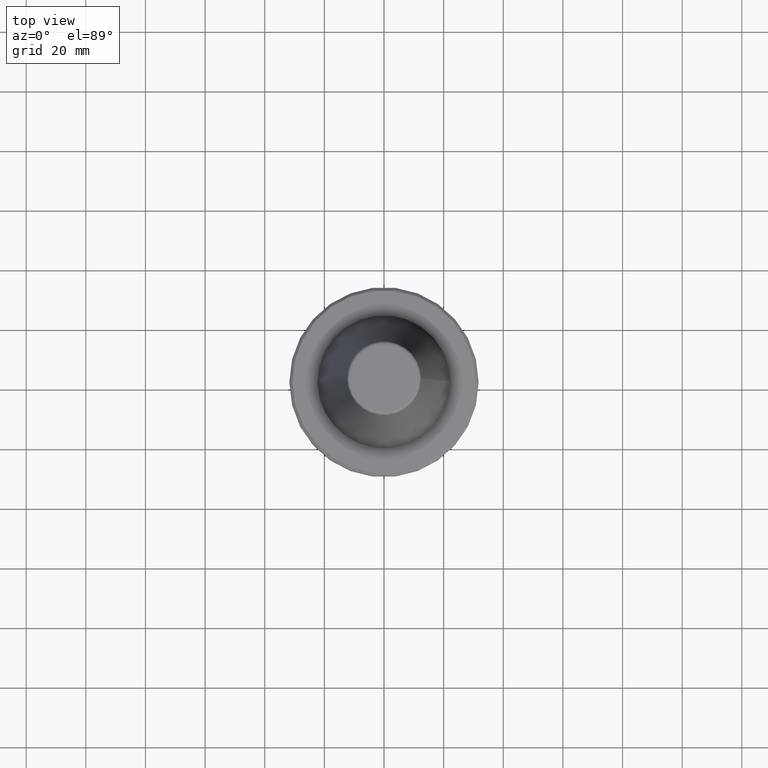
[diagram: clean part render]
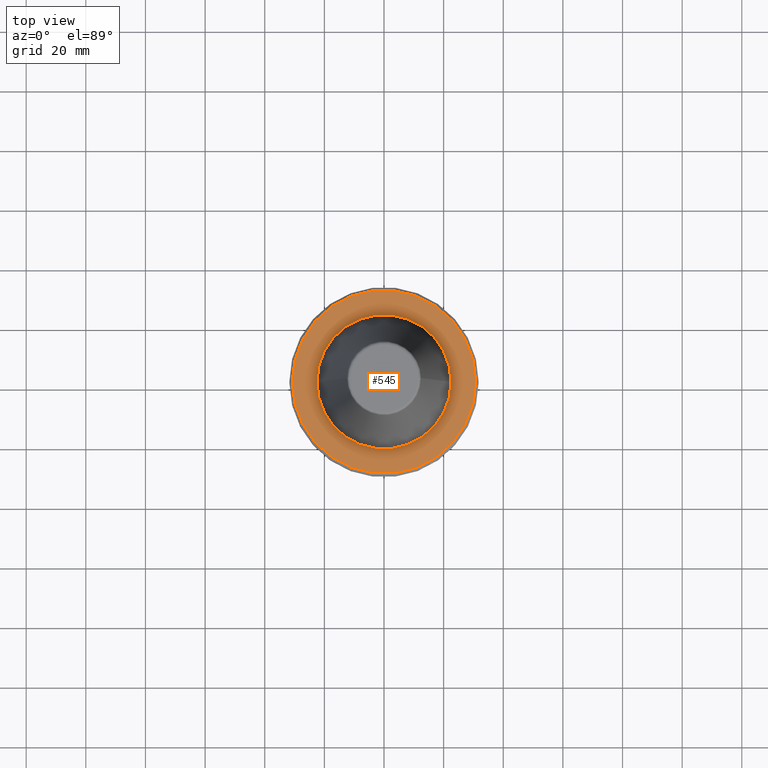
[diagram: same view with one face highlighted and labeled with its STEP entity id]
A machine part, top view. The second image highlights one B-rep face of the part: STEP entity #545.
In plain terms, the highlighted planar face has unit normal (0, 0, -1).
Its self-contained STEP definition (entity closure, byte-faithful):
#1 = CARTESIAN_POINT ( 'NONE',  ( 22.50000000000029800, 0.0000000000000000000, 90.19999999999990300 ) ) ;
#25 = FACE_BOUND ( 'NONE', #602, .T. ) ;
#63 = VERTEX_POINT ( 'NONE', #1 ) ;
#153 = CARTESIAN_POINT ( 'NONE',  ( 0.0000000000000000000, 30.74999999999983300, 90.19999999999994600 ) ) ;
#179 = DIRECTION ( 'NONE',  ( -0.0000000000000000000, -0.0000000000000000000, 1.000000000000000000 ) ) ;
#182 = CARTESIAN_POINT ( 'NONE',  ( 0.0000000000000000000, 0.0000000000000000000, 90.19999999999994600 ) ) ;
#237 = CIRCLE ( 'NONE', #1184, 22.50000000000029800 ) ;
#261 = AXIS2_PLACEMENT_3D ( 'NONE', #153, #429, #755 ) ;
#364 = DIRECTION ( 'NONE',  ( -0.0000000000000000000, -0.0000000000000000000, 1.000000000000000000 ) ) ;
#375 = CARTESIAN_POINT ( 'NONE',  ( -30.74999999999983300, 0.0000000000000000000, 90.19999999999994600 ) ) ;
#389 = VERTEX_POINT ( 'NONE', #1001 ) ;
#418 = EDGE_CURVE ( 'NONE', #389, #714, #1006, .T. ) ;
#429 = DIRECTION ( 'NONE',  ( 0.0000000000000000000, 0.0000000000000000000, -1.000000000000000000 ) ) ;
#479 = DIRECTION ( 'NONE',  ( 1.000000000000000000, 0.0000000000000000000, 0.0000000000000000000 ) ) ;
#484 = VERTEX_POINT ( 'NONE', #1023 ) ;
#502 = AXIS2_PLACEMENT_3D ( 'NONE', #833, #179, #753 ) ;
#504 = CIRCLE ( 'NONE', #502, 22.50000000000029800 ) ;
#545 = ADVANCED_FACE ( 'NONE', ( #25, #928 ), #743, .F. ) ;
#550 = DIRECTION ( 'NONE',  ( -0.0000000000000000000, -0.0000000000000000000, 1.000000000000000000 ) ) ;
#587 = AXIS2_PLACEMENT_3D ( 'NONE', #1002, #700, #479 ) ;
#602 = EDGE_LOOP ( 'NONE', ( #814, #952 ) ) ;
#642 = ORIENTED_EDGE ( 'NONE', *, *, #418, .T. ) ;
#691 = EDGE_CURVE ( 'NONE', #484, #63, #504, .T. ) ;
#700 = DIRECTION ( 'NONE',  ( -0.0000000000000000000, -0.0000000000000000000, 1.000000000000000000 ) ) ;
#705 = ORIENTED_EDGE ( 'NONE', *, *, #1158, .T. ) ;
#714 = VERTEX_POINT ( 'NONE', #375 ) ;
#743 = PLANE ( 'NONE',  #261 ) ;
#753 = DIRECTION ( 'NONE',  ( 1.000000000000000000, 0.0000000000000000000, 0.0000000000000000000 ) ) ;
#755 = DIRECTION ( 'NONE',  ( -1.000000000000000000, 0.0000000000000000000, -0.0000000000000000000 ) ) ;
#814 = ORIENTED_EDGE ( 'NONE', *, *, #1207, .F. ) ;
#833 = CARTESIAN_POINT ( 'NONE',  ( 0.0000000000000000000, 0.0000000000000000000, 90.19999999999994600 ) ) ;
#875 = DIRECTION ( 'NONE',  ( 1.000000000000000000, 0.0000000000000000000, 0.0000000000000000000 ) ) ;
#878 = CARTESIAN_POINT ( 'NONE',  ( 0.0000000000000000000, 0.0000000000000000000, 90.19999999999994600 ) ) ;
#902 = DIRECTION ( 'NONE',  ( 1.000000000000000000, 0.0000000000000000000, 0.0000000000000000000 ) ) ;
#928 = FACE_OUTER_BOUND ( 'NONE', #1182, .T. ) ;
#952 = ORIENTED_EDGE ( 'NONE', *, *, #691, .F. ) ;
#1001 = CARTESIAN_POINT ( 'NONE',  ( 30.74999999999983300, 3.827021247335457600E-015, 90.19999999999994600 ) ) ;
#1002 = CARTESIAN_POINT ( 'NONE',  ( 0.0000000000000000000, 0.0000000000000000000, 90.19999999999994600 ) ) ;
#1006 = CIRCLE ( 'NONE', #587, 30.74999999999983300 ) ;
#1023 = CARTESIAN_POINT ( 'NONE',  ( -22.50000000000029800, 2.755455298081581100E-015, 90.19999999999990300 ) ) ;
#1069 = CIRCLE ( 'NONE', #1081, 30.74999999999983300 ) ;
#1081 = AXIS2_PLACEMENT_3D ( 'NONE', #878, #550, #902 ) ;
#1158 = EDGE_CURVE ( 'NONE', #714, #389, #1069, .T. ) ;
#1182 = EDGE_LOOP ( 'NONE', ( #705, #642 ) ) ;
#1184 = AXIS2_PLACEMENT_3D ( 'NONE', #182, #364, #875 ) ;
#1207 = EDGE_CURVE ( 'NONE', #63, #484, #237, .T. ) ;